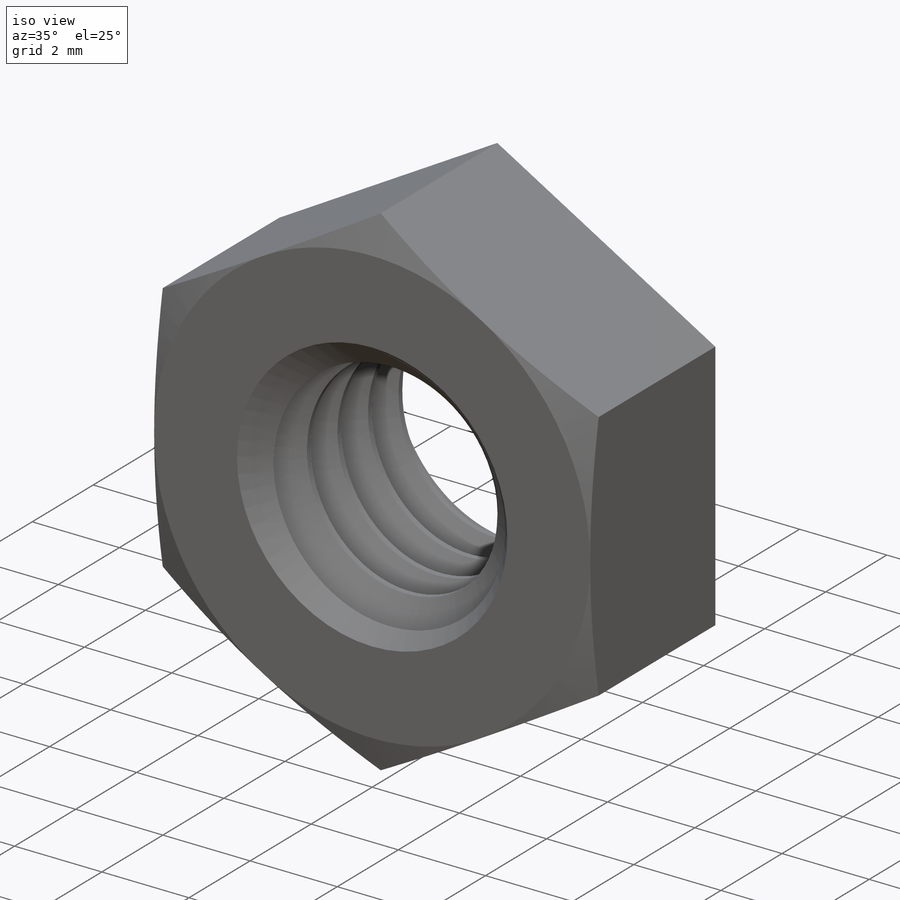
[diagram: iso view]
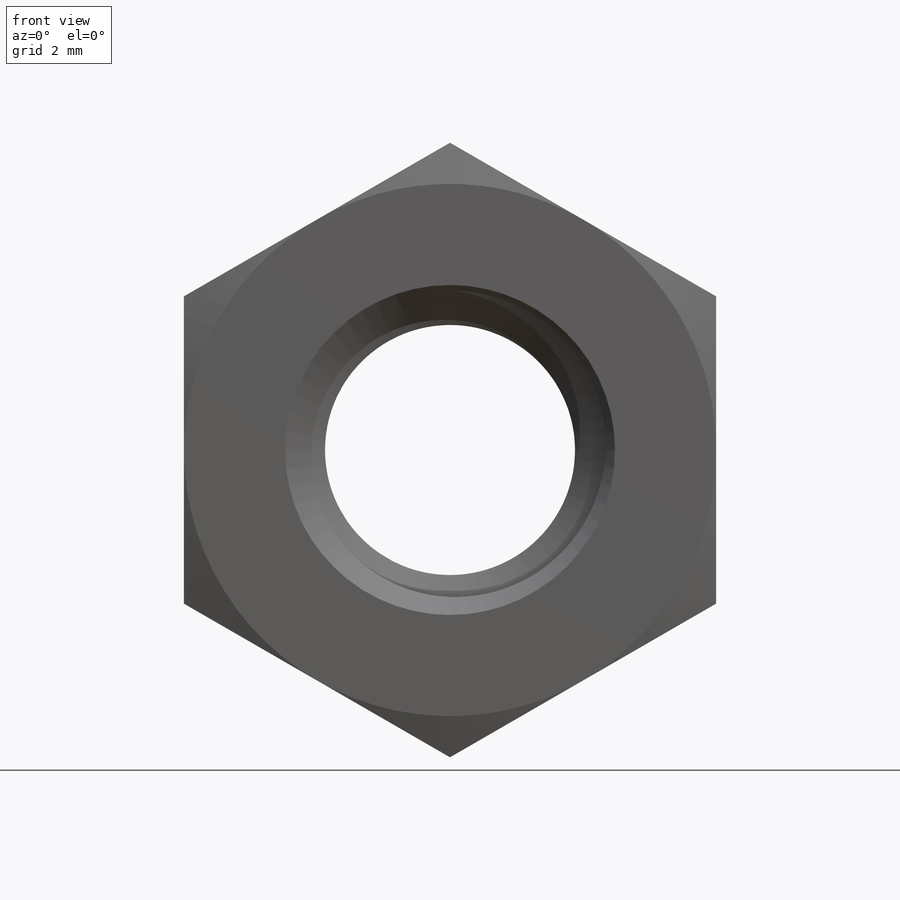
[diagram: front view]
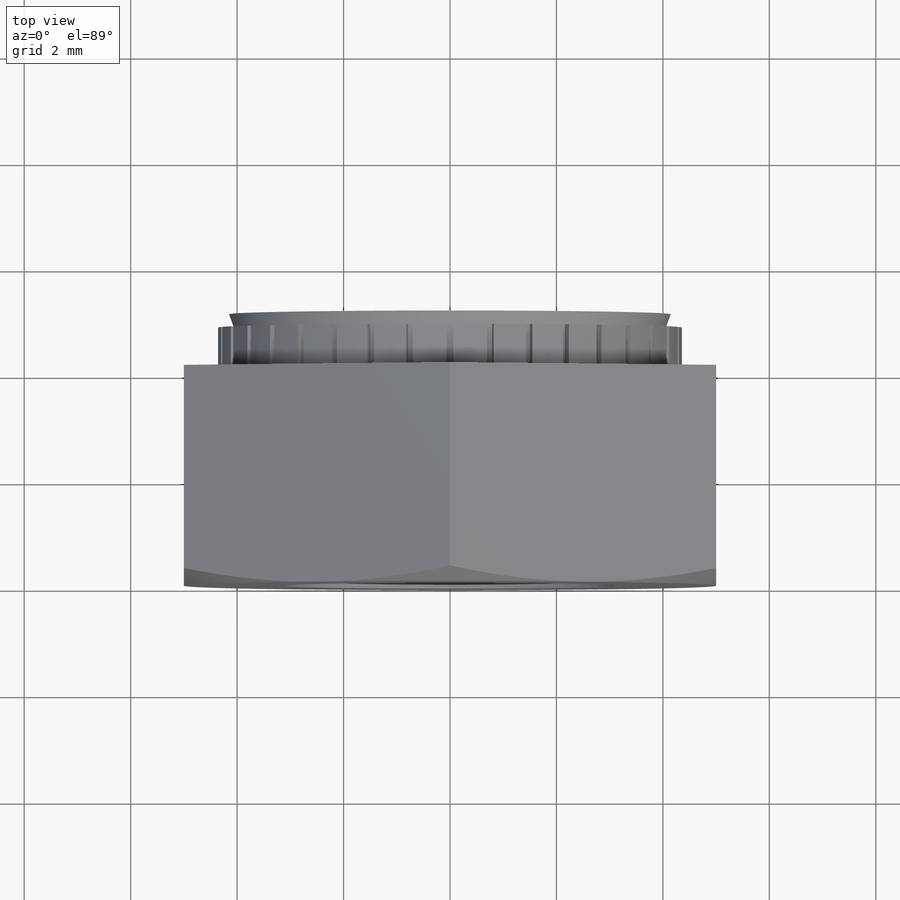
[diagram: top view]
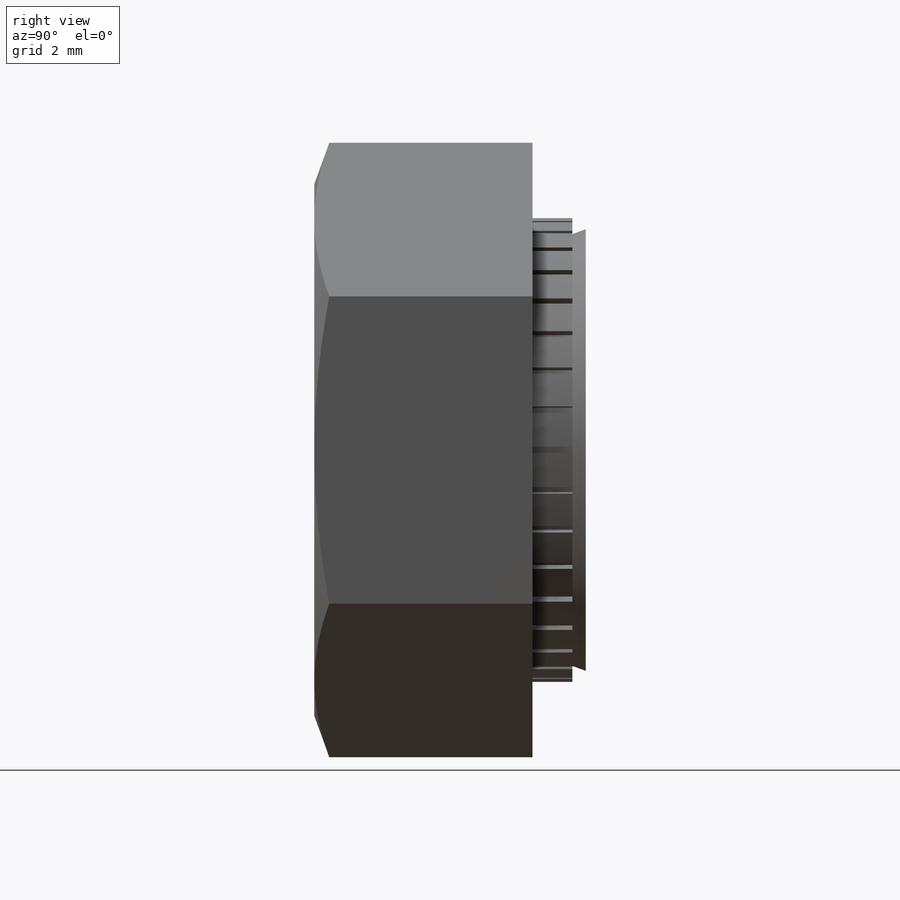
[diagram: right view]
SOLIDWORKS PART (.sldprt)
format: sldprt  version: not decoded by parser v0  size: 798,720 bytes
history: native  units: mm
features: sketch x13, cut_extrude x7, extrude x2, material x1, pattern_circular x1, helix x1, sweep x1 (+14 scaffold rows collapsed)
feature tree (40):
  scaffold x14  (default folders/planes/origin — collapsed)
  material  "AISI 304"
  sketch  "Sketch1"  dims[A=10.0mm]
  extrude  "Extrude1"  Depth=4.1mm B=4.1mm
  sketch  "Sketch15"  dims[hole dia=6.5mm D1=8.715mm]
  sketch  "Sketch2"  dims[C=6.3246mm hole Dia=6.3246mm D1=8.715mm]
  extrude  "Extrude2"  Depth=1mm panel min.=1mm
  sketch  "Sketch3"  dims[D1=0.15mm D5=0.127mm D6=1.0mm D7=5.0mm]
  pattern_circular  "CirPattern1"  Count=36 Angle=360deg
  sketch  "Sketch5"  dims[C=8.3mm D1=0.254mm]
  cut_extrude  "Cut-Extrude1"  Depth=0.25mm
  sketch  "Sketch7"  dims[Thread Od=6.0mm]
  cut_extrude  "Cut-Extrude3"  [1 undecoded]
  sketch  "Sketch8"
  helix  "Helix/Spiral1"  Pitch=7.1mm pitch=1mm
  sketch  "Sketch9"  dims[c1.D1=~0.861598mm c2.D1=60.0deg c2.D2=0.125mm c2.D3=0.5mm]
  sweep  "Sweep1"
  sketch  "Sketch10"  dims[D1=0.0mm]
  cut_extrude  "Cut-Extrude4"  [1 undecoded]
  sketch  "Sketch11"
  cut_extrude  "Cut-Extrude5"  [1 undecoded]
  sketch  "Sketch13"  dims[D1=0.1mm]
  cut_extrude  "Cut-Extrude6"  [1 undecoded]
  sketch  "Sketch14"  dims[D1=0.1mm]
  cut_extrude  "Cut-Extrude7"  [1 undecoded]
  sketch  "Sketch16"
  cut_extrude  "Cut-Extrude8"  [1 undecoded]
decode coverage: 15 of 25 modeling features carry decoded parameters
note: ~ marks probable driven/reference dimensions
note: 6 parameter values undecoded
summary: no parameter record found for 6 features
note: suppression state not decoded; provenance and decode notes live in map.json
